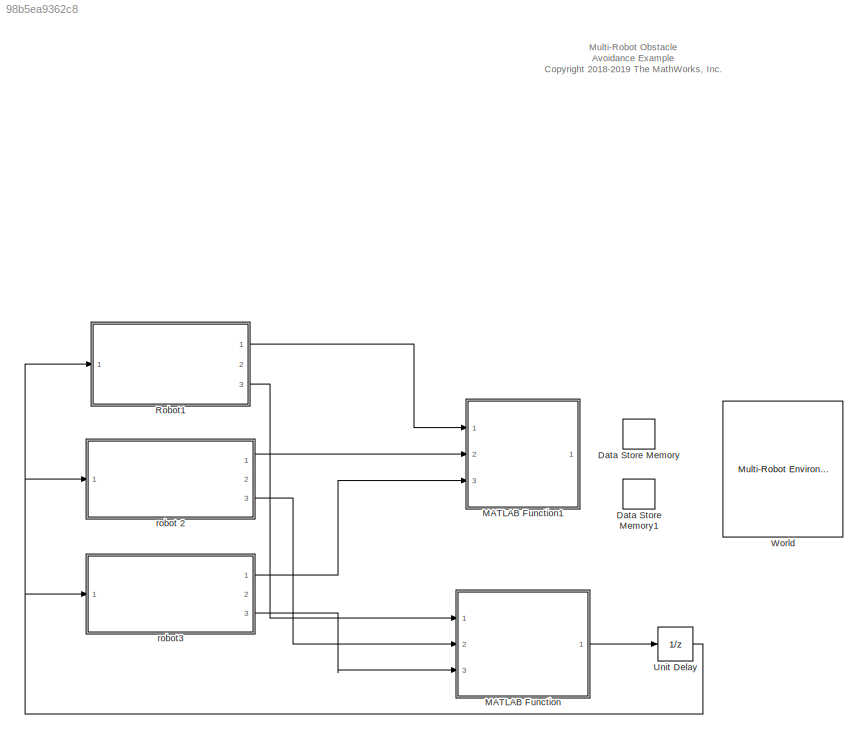
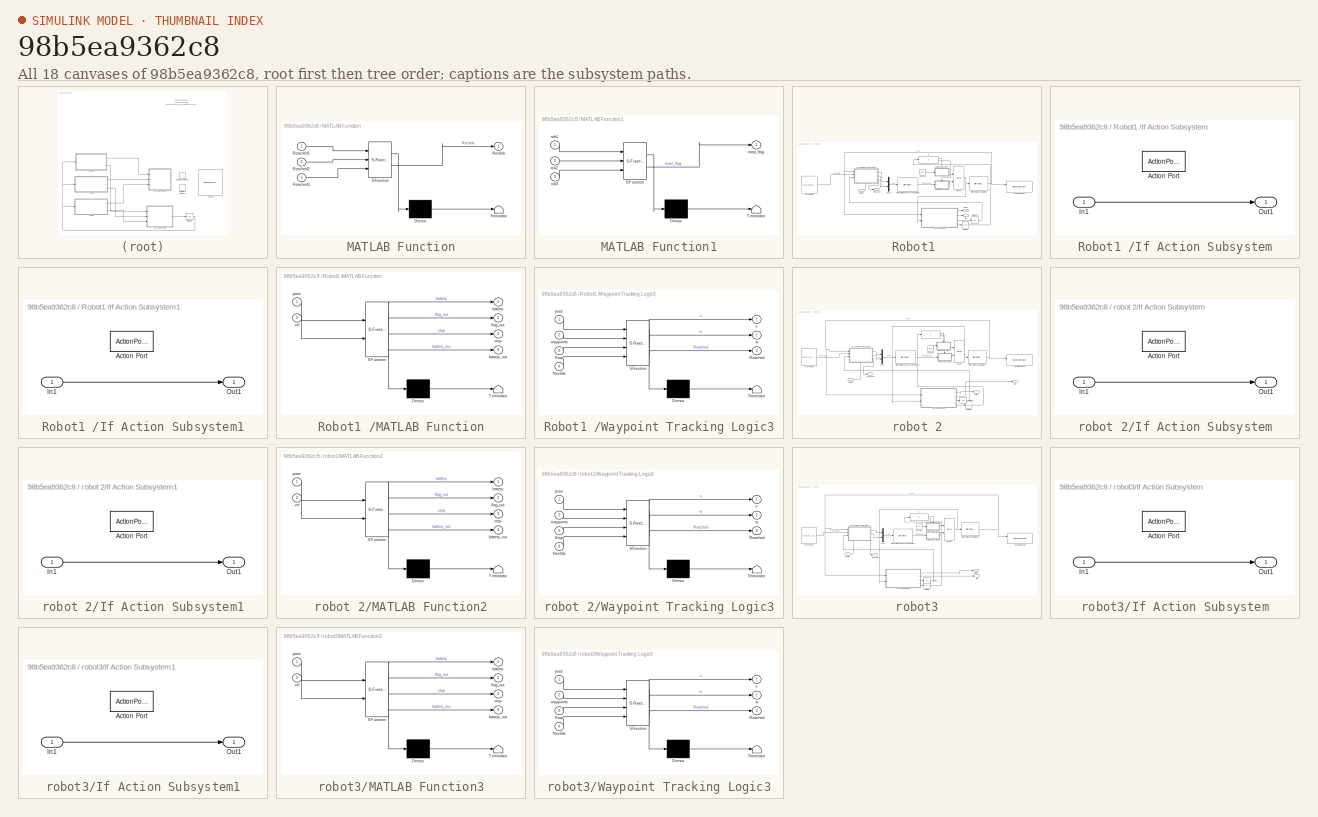
[diagram: thumbnail index - all 18 canvases of the model, root first then tree order]
MODEL slx_98b5ea9362c8
KIND model
CONFIG AbsTol = auto
CONFIG EnableMultiTasking = off
CONFIG FixedStep = sampleTime
CONFIG MaxStep = auto
CONFIG MinStep = auto
CONFIG PreLoadFcn = % Simulation parameters\nload exampleMap\nsampleTime = 0.05;\n\n% Robot parameters\nwheelRadius = 0.025;\nrobotRadius = 0.35;\n\n% Lidar parameters\nsensorOffset = [0,0];\nscanAngles = linspace(-pi/2,pi/2,9)';\nmaxRange = 5;
CONFIG RelTol = 1e-3
CONFIG SampleTimeConstraint = Unconstrained
CONFIG SolverName = FixedStepAuto
CONFIG StartTime = 0.0
CONFIG StopTime = inf
BLOCK [DataStoreMemory] Data Store Memory
  InitialValue = [1000 1000 1000]
  OutDataTypeStr = double
  ReadBeforeWriteMsg = warning
  ShowAdditionalParam = off
  SignalType = real
  WriteAfterReadMsg = warning
  WriteAfterWriteMsg = warning
BLOCK [DataStoreMemory] Data Store Memory1
  DataStoreName = master_flag
  OutDataTypeStr = double
  ReadBeforeWriteMsg = warning
  ShowAdditionalParam = off
  SignalType = real
  WriteAfterReadMsg = warning
  WriteAfterWriteMsg = warning
BLOCK [SubSystem] MATLAB Function
  ErrorFcn = Stateflow.Translate.translate
  PermitHierarchicalResolution = ExplicitOnly
  Ports = [3, 1]
  RequestExecContextInheritance = off
  SFBlockType = MATLAB Function
  TreatAsAtomicUnit = on
BLOCK [Demux] MATLAB Function/ Demux 
  Outputs = 1
  Ports = [1, 1]
BLOCK [S-Function] MATLAB Function/ SFunction 
  EnableBusSupport = on
  FunctionName = sf_sfun
  PortCounts = [3 2]
  Ports = [3, 2]
  SFcnIsStateOwnerBlock = off
  SFunctionDeploymentMode = off
  Tag = Stateflow S-Function 8
BLOCK [Terminator] MATLAB Function/ Terminator 
BLOCK [Outport] MATLAB Function/NextIdx
BLOCK [Inport] MATLAB Function/Reached1
BLOCK [Inport] MATLAB Function/Reached2
  Port = 2
BLOCK [Inport] MATLAB Function/Reached3
  Port = 3
BLOCK [SubSystem] MATLAB Function1
  ErrorFcn = Stateflow.Translate.translate
  PermitHierarchicalResolution = ExplicitOnly
  Ports = [3, 1]
  RequestExecContextInheritance = off
  SFBlockType = MATLAB Function
  TreatAsAtomicUnit = on
BLOCK [Demux] MATLAB Function1/ Demux 
  Outputs = 1
  Ports = [1, 1]
BLOCK [S-Function] MATLAB Function1/ SFunction 
  EnableBusSupport = on
  FunctionName = sf_sfun
  PortCounts = [3 2]
  Ports = [3, 2]
  SFcnIsStateOwnerBlock = off
  SFunctionDeploymentMode = off
  Tag = Stateflow S-Function 1
BLOCK [Terminator] MATLAB Function1/ Terminator 
BLOCK [Outport] MATLAB Function1/mast_flag
BLOCK [Inport] MATLAB Function1/rob1
BLOCK [Inport] MATLAB Function1/rob2
  Port = 2
BLOCK [Inport] MATLAB Function1/rob3
  Port = 3
BLOCK [SubSystem] Robot1 
  Ports = [1, 3]
  RequestExecContextInheritance = off
BLOCK [Constant] Robot1 /Constant
  Value = [0 0]
BLOCK [Reference] Robot1 /Differential Drive Inverse Kinematics  REF=mobileRoboticsLib/Kinematic Models/Differential Drive/Differential Drive
Inverse Kinematics
  Ports = [1, 1]
  SourceBlock = mobileRoboticsLib/Kinematic Models/Differential Drive/Differential Drive\nInverse Kinematics
  SourceProductName = Mobile Robotics Simulation Toolbox
  SourceType = Differential Drive Inverse Kinematics
BLOCK [Reference] Robot1 /Differential Drive Simulation  REF=mobileRoboticsLib/Kinematic Models/Differential Drive/Differential Drive Simulation
  Ports = [1, 1]
  SourceBlock = mobileRoboticsLib/Kinematic Models/Differential Drive/Differential Drive Simulation
  SourceProductName = Mobile Robotics Simulation Toolbox
  SourceType = Differential Drive Simulation
BLOCK [If] Robot1 /If
  IfExpression = u1 == 1
  Ports = [1, 2]
BLOCK [SubSystem] Robot1 /If Action Subsystem
  Ports = [1, 1, 0, 0, 0, 0, 0, 1]
  RequestExecContextInheritance = off
  TreatAsAtomicUnit = on
BLOCK [ActionPort] Robot1 /If Action Subsystem/Action Port
  ActionPortLabel = if(u1 == 1)
BLOCK [Inport] Robot1 /If Action Subsystem/In1
BLOCK [Outport] Robot1 /If Action Subsystem/Out1
BLOCK [SubSystem] Robot1 /If Action Subsystem1
  Ports = [1, 1, 0, 0, 0, 0, 0, 1]
  RequestExecContextInheritance = off
  TreatAsAtomicUnit = on
BLOCK [ActionPort] Robot1 /If Action Subsystem1/Action Port
  ActionPortLabel = else
BLOCK [Inport] Robot1 /If Action Subsystem1/In1
BLOCK [Outport] Robot1 /If Action Subsystem1/Out1
BLOCK [SubSystem] Robot1 /MATLAB Function
  ErrorFcn = Stateflow.Translate.translate
  PermitHierarchicalResolution = ExplicitOnly
  Ports = [2, 4]
  RequestExecContextInheritance = off
  SFBlockType = MATLAB Function
  TreatAsAtomicUnit = on
BLOCK [Demux] Robot1 /MATLAB Function/ Demux 
  Outputs = 1
  Ports = [1, 1]
BLOCK [S-Function] Robot1 /MATLAB Function/ SFunction 
  EnableBusSupport = on
  FunctionName = sf_sfun
  PortCounts = [2 5]
  Ports = [2, 5]
  SFcnIsStateOwnerBlock = off
  SFunctionDeploymentMode = off
  Tag = Stateflow S-Function 2
BLOCK [Terminator] Robot1 /MATLAB Function/ Terminator 
BLOCK [Outport] Robot1 /MATLAB Function/battery
BLOCK [Outport] Robot1 /MATLAB Function/battery_out
  Port = 4
BLOCK [Outport] Robot1 /MATLAB Function/flag_out
  Port = 2
BLOCK [Inport] Robot1 /MATLAB Function/pose
BLOCK [Outport] Robot1 /MATLAB Function/stop
  Port = 3
BLOCK [Inport] Robot1 /MATLAB Function/vel
  Port = 2
BLOCK [Merge] Robot1 /Merge
  Ports = [2, 1]
BLOCK [Mux] Robot1 /Mux3
  DisplayOption = bar
  Inputs = 2
  Ports = [2, 1]
BLOCK [Inport] Robot1 /NextIdx
BLOCK [Outport] Robot1 /Reached
  Port = 3
BLOCK [UnitDelay] Robot1 /Unit Delay
  HasFrameUpgradeWarning = on
  SampleTime = -1
BLOCK [UnitDelay] Robot1 /Unit Delay1
  HasFrameUpgradeWarning = on
  SampleTime = -1
BLOCK [Reference] Robot1 /Visualize Robot 1  REF=mobileRoboticsLib/Environments/Multi-Robot Visualizer
  Ports = [2]
  SourceBlock = mobileRoboticsLib/Environments/Multi-Robot Visualizer
  SourceProductName = Mobile Robotics Simulation Toolbox
  SourceType = Multi-Robot Visualizer
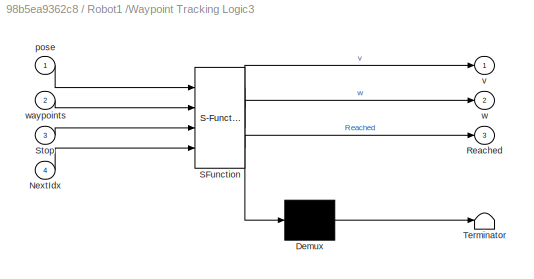
BLOCK [SubSystem] Robot1 /Waypoint Tracking Logic3
  ErrorFcn = Stateflow.Translate.translate
  PermitHierarchicalResolution = ExplicitOnly
  PortSchema = {"entries":[{"content":{"sides":[{"content":{"connectorIds":["In1","In2","In3"]},"type":"ConnectorPlacement.EquallySpacedRectSide","uuid":"0f37e2f5-7e3e-44b4-b5ad-f9c608efa7e9"},{"content":{"connectorIds":["Out1","Out2","Out3"],"side":"RIGHT"},"type":"ConnectorPlacement.EquallySpacedRectSide","uuid":"845bf79f-ea31-423e-b1b0-9ff668e9d8f6"},{"content":{"connectorIds":[],"side":"TOP"},"type":"Connect...<+559ch>
  Ports = [4, 3]
  RequestExecContextInheritance = off
  SFBlockType = Chart
  TreatAsAtomicUnit = on
BLOCK [Demux] Robot1 /Waypoint Tracking Logic3/ Demux 
  Outputs = 1
  Ports = [1, 1]
BLOCK [S-Function] Robot1 /Waypoint Tracking Logic3/ SFunction 
  EnableBusSupport = on
  FunctionName = sf_sfun
  PortCounts = [4 4]
  Ports = [4, 4]
  SFcnIsStateOwnerBlock = off
  SFunctionDeploymentMode = off
  Tag = Stateflow S-Function 7
BLOCK [Terminator] Robot1 /Waypoint Tracking Logic3/ Terminator 
BLOCK [Inport] Robot1 /Waypoint Tracking Logic3/NextIdx
  Port = 4
BLOCK [Outport] Robot1 /Waypoint Tracking Logic3/Reached
  Port = 3
BLOCK [Inport] Robot1 /Waypoint Tracking Logic3/Stop
  Port = 3
BLOCK [Inport] Robot1 /Waypoint Tracking Logic3/pose
BLOCK [Outport] Robot1 /Waypoint Tracking Logic3/v
  VectorParamsAs1DForOutWhenUnconnected = off
BLOCK [Outport] Robot1 /Waypoint Tracking Logic3/w
  Port = 2
  VectorParamsAs1DForOutWhenUnconnected = off
BLOCK [Inport] Robot1 /Waypoint Tracking Logic3/waypoints
  Port = 2
BLOCK [Constant] Robot1 /Waypoints
  Value = [0,2;0,0;0,2; 0,2; 0,0; 0,1;0,2;0,0;0,2; 0,2; 0,0; 0,1;0,2;0,0;0,2; 0,2; 0,0; 0,1]
BLOCK [Outport] Robot1 /battery
  Port = 2
BLOCK [Outport] Robot1 /flag
BLOCK [UnitDelay] Unit Delay
  HasFrameUpgradeWarning = on
  SampleTime = -1
BLOCK [Reference] World  REF=mobileRoboticsLib/Environments/Multi-Robot Environment
  Ports = []
  SourceBlock = mobileRoboticsLib/Environments/Multi-Robot Environment
  SourceProductName = Mobile Robotics Simulation Toolbox
  SourceType = Multi-Robot Environment
BLOCK [SubSystem] robot 2
  Ports = [1, 3]
  RequestExecContextInheritance = off
BLOCK [Constant] robot 2/Constant
  Value = [0 0]
BLOCK [Reference] robot 2/Differential Drive Inverse Kinematics1  REF=mobileRoboticsLib/Kinematic Models/Differential Drive/Differential Drive
Inverse Kinematics
  Ports = [1, 1]
  SourceBlock = mobileRoboticsLib/Kinematic Models/Differential Drive/Differential Drive\nInverse Kinematics
  SourceProductName = Mobile Robotics Simulation Toolbox
  SourceType = Differential Drive Inverse Kinematics
BLOCK [Reference] robot 2/Differential Drive Simulation1  REF=mobileRoboticsLib/Kinematic Models/Differential Drive/Differential Drive Simulation
  Ports = [1, 1]
  SourceBlock = mobileRoboticsLib/Kinematic Models/Differential Drive/Differential Drive Simulation
  SourceProductName = Mobile Robotics Simulation Toolbox
  SourceType = Differential Drive Simulation
BLOCK [If] robot 2/If
  IfExpression = u1 == 1
  Ports = [1, 2]
BLOCK [SubSystem] robot 2/If Action Subsystem
  Ports = [1, 1, 0, 0, 0, 0, 0, 1]
  RequestExecContextInheritance = off
  TreatAsAtomicUnit = on
BLOCK [ActionPort] robot 2/If Action Subsystem/Action Port
  ActionPortLabel = if(u1 == 1)
BLOCK [Inport] robot 2/If Action Subsystem/In1
BLOCK [Outport] robot 2/If Action Subsystem/Out1
BLOCK [SubSystem] robot 2/If Action Subsystem1
  Ports = [1, 1, 0, 0, 0, 0, 0, 1]
  RequestExecContextInheritance = off
  TreatAsAtomicUnit = on
BLOCK [ActionPort] robot 2/If Action Subsystem1/Action Port
  ActionPortLabel = else
BLOCK [Inport] robot 2/If Action Subsystem1/In1
BLOCK [Outport] robot 2/If Action Subsystem1/Out1
BLOCK [SubSystem] robot 2/MATLAB Function2
  ErrorFcn = Stateflow.Translate.translate
  PermitHierarchicalResolution = ExplicitOnly
  Ports = [2, 4]
  RequestExecContextInheritance = off
  SFBlockType = MATLAB Function
  TreatAsAtomicUnit = on
BLOCK [Demux] robot 2/MATLAB Function2/ Demux 
  Outputs = 1
  Ports = [1, 1]
BLOCK [S-Function] robot 2/MATLAB Function2/ SFunction 
  EnableBusSupport = on
  FunctionName = sf_sfun
  PortCounts = [2 5]
  Ports = [2, 5]
  SFcnIsStateOwnerBlock = off
  SFunctionDeploymentMode = off
  Tag = Stateflow S-Function 3
BLOCK [Terminator] robot 2/MATLAB Function2/ Terminator 
BLOCK [Outport] robot 2/MATLAB Function2/battery
BLOCK [Outport] robot 2/MATLAB Function2/battery_out
  Port = 4
BLOCK [Outport] robot 2/MATLAB Function2/flag_out
  Port = 2
BLOCK [Inport] robot 2/MATLAB Function2/pose
BLOCK [Outport] robot 2/MATLAB Function2/stop
  Port = 3
BLOCK [Inport] robot 2/MATLAB Function2/vel
  Port = 2
BLOCK [Merge] robot 2/Merge
  Ports = [2, 1]
BLOCK [Mux] robot 2/Mux3
  DisplayOption = bar
  Inputs = 2
  Ports = [2, 1]
BLOCK [Inport] robot 2/NextIdx
BLOCK [Outport] robot 2/Reached
  Port = 3
BLOCK [UnitDelay] robot 2/Unit Delay
  HasFrameUpgradeWarning = on
  SampleTime = -1
BLOCK [UnitDelay] robot 2/Unit Delay1
  HasFrameUpgradeWarning = on
  SampleTime = -1
BLOCK [Reference] robot 2/Visualize Robot 2  REF=mobileRoboticsLib/Environments/Multi-Robot Visualizer
  Ports = [2]
  SourceBlock = mobileRoboticsLib/Environments/Multi-Robot Visualizer
  SourceProductName = Mobile Robotics Simulation Toolbox
  SourceType = Multi-Robot Visualizer
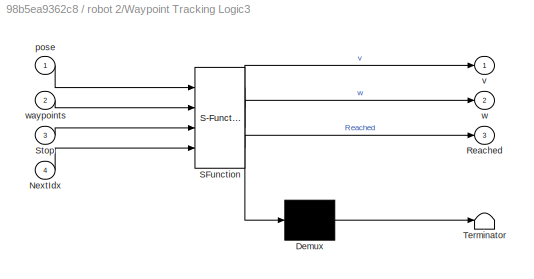
BLOCK [SubSystem] robot 2/Waypoint Tracking Logic3
  ErrorFcn = Stateflow.Translate.translate
  PermitHierarchicalResolution = ExplicitOnly
  PortSchema = {"entries":[{"content":{"sides":[{"content":{"connectorIds":["In1","In2","In3"]},"type":"ConnectorPlacement.EquallySpacedRectSide","uuid":"0f37e2f5-7e3e-44b4-b5ad-f9c608efa7e9"},{"content":{"connectorIds":["Out1","Out2","Out3"],"side":"RIGHT"},"type":"ConnectorPlacement.EquallySpacedRectSide","uuid":"845bf79f-ea31-423e-b1b0-9ff668e9d8f6"},{"content":{"connectorIds":[],"side":"TOP"},"type":"Connect...<+559ch>
  Ports = [4, 3]
  RequestExecContextInheritance = off
  SFBlockType = Chart
  TreatAsAtomicUnit = on
BLOCK [Demux] robot 2/Waypoint Tracking Logic3/ Demux 
  Outputs = 1
  Ports = [1, 1]
BLOCK [S-Function] robot 2/Waypoint Tracking Logic3/ SFunction 
  EnableBusSupport = on
  FunctionName = sf_sfun
  PortCounts = [4 4]
  Ports = [4, 4]
  SFcnIsStateOwnerBlock = off
  SFunctionDeploymentMode = off
  Tag = Stateflow S-Function 5
BLOCK [Terminator] robot 2/Waypoint Tracking Logic3/ Terminator 
BLOCK [Inport] robot 2/Waypoint Tracking Logic3/NextIdx
  Port = 4
BLOCK [Outport] robot 2/Waypoint Tracking Logic3/Reached
  Port = 3
BLOCK [Inport] robot 2/Waypoint Tracking Logic3/Stop
  Port = 3
BLOCK [Inport] robot 2/Waypoint Tracking Logic3/pose
BLOCK [Outport] robot 2/Waypoint Tracking Logic3/v
  VectorParamsAs1DForOutWhenUnconnected = off
BLOCK [Outport] robot 2/Waypoint Tracking Logic3/w
  Port = 2
  VectorParamsAs1DForOutWhenUnconnected = off
BLOCK [Inport] robot 2/Waypoint Tracking Logic3/waypoints
  Port = 2
BLOCK [Constant] robot 2/Waypoints1
  Value = [0,1; 0,2; 0,0; 0,1; 0,2;0,0;0,1; 0,2; 0,0; 0,1; 0,2;0,0;0,1; 0,2; 0,0; 0,1; 0,2;0,0]
BLOCK [Outport] robot 2/battery
  Port = 2
BLOCK [Outport] robot 2/flag
BLOCK [SubSystem] robot3
  Ports = [1, 3]
  RequestExecContextInheritance = off
BLOCK [Constant] robot3/Constant
  Value = [0 0]
BLOCK [Reference] robot3/Differential Drive Inverse Kinematics2  REF=mobileRoboticsLib/Kinematic Models/Differential Drive/Differential Drive
Inverse Kinematics
  Ports = [1, 1]
  SourceBlock = mobileRoboticsLib/Kinematic Models/Differential Drive/Differential Drive\nInverse Kinematics
  SourceProductName = Mobile Robotics Simulation Toolbox
  SourceType = Differential Drive Inverse Kinematics
BLOCK [Reference] robot3/Differential Drive Simulation2  REF=mobileRoboticsLib/Kinematic Models/Differential Drive/Differential Drive Simulation
  Ports = [1, 1]
  SourceBlock = mobileRoboticsLib/Kinematic Models/Differential Drive/Differential Drive Simulation
  SourceProductName = Mobile Robotics Simulation Toolbox
  SourceType = Differential Drive Simulation
BLOCK [If] robot3/If
  IfExpression = u1 == 1
  Ports = [1, 2]
BLOCK [SubSystem] robot3/If Action Subsystem
  Ports = [1, 1, 0, 0, 0, 0, 0, 1]
  RequestExecContextInheritance = off
  TreatAsAtomicUnit = on
BLOCK [ActionPort] robot3/If Action Subsystem/Action Port
  ActionPortLabel = if(u1 == 1)
BLOCK [Inport] robot3/If Action Subsystem/In1
BLOCK [Outport] robot3/If Action Subsystem/Out1
BLOCK [SubSystem] robot3/If Action Subsystem1
  Ports = [1, 1, 0, 0, 0, 0, 0, 1]
  RequestExecContextInheritance = off
  TreatAsAtomicUnit = on
BLOCK [ActionPort] robot3/If Action Subsystem1/Action Port
  ActionPortLabel = else
BLOCK [Inport] robot3/If Action Subsystem1/In1
BLOCK [Outport] robot3/If Action Subsystem1/Out1
BLOCK [SubSystem] robot3/MATLAB Function3
  ErrorFcn = Stateflow.Translate.translate
  PermitHierarchicalResolution = ExplicitOnly
  Ports = [2, 4]
  RequestExecContextInheritance = off
  SFBlockType = MATLAB Function
  TreatAsAtomicUnit = on
BLOCK [Demux] robot3/MATLAB Function3/ Demux 
  Outputs = 1
  Ports = [1, 1]
BLOCK [S-Function] robot3/MATLAB Function3/ SFunction 
  EnableBusSupport = on
  FunctionName = sf_sfun
  PortCounts = [2 5]
  Ports = [2, 5]
  SFcnIsStateOwnerBlock = off
  SFunctionDeploymentMode = off
  Tag = Stateflow S-Function 4
BLOCK [Terminator] robot3/MATLAB Function3/ Terminator 
BLOCK [Outport] robot3/MATLAB Function3/battery
BLOCK [Outport] robot3/MATLAB Function3/battery_out
  Port = 4
BLOCK [Outport] robot3/MATLAB Function3/flag_out
  Port = 2
BLOCK [Inport] robot3/MATLAB Function3/pose
BLOCK [Outport] robot3/MATLAB Function3/stop
  Port = 3
BLOCK [Inport] robot3/MATLAB Function3/vel
  Port = 2
BLOCK [Merge] robot3/Merge
  Ports = [2, 1]
BLOCK [Mux] robot3/Mux3
  DisplayOption = bar
  Inputs = 2
  Ports = [2, 1]
BLOCK [Inport] robot3/NextIdx
BLOCK [Outport] robot3/Reached
  Port = 3
BLOCK [UnitDelay] robot3/Unit Delay
  HasFrameUpgradeWarning = on
  SampleTime = -1
BLOCK [UnitDelay] robot3/Unit Delay1
  HasFrameUpgradeWarning = on
  SampleTime = -1
BLOCK [Reference] robot3/Visualize Robot 3  REF=mobileRoboticsLib/Environments/Multi-Robot Visualizer
  Ports = [2]
  SourceBlock = mobileRoboticsLib/Environments/Multi-Robot Visualizer
  SourceProductName = Mobile Robotics Simulation Toolbox
  SourceType = Multi-Robot Visualizer
BLOCK [SubSystem] robot3/Waypoint Tracking Logic3
  ErrorFcn = Stateflow.Translate.translate
  PermitHierarchicalResolution = ExplicitOnly
  PortSchema = {"entries":[{"content":{"sides":[{"content":{"connectorIds":["In1","In2","In3"]},"type":"ConnectorPlacement.EquallySpacedRectSide","uuid":"0f37e2f5-7e3e-44b4-b5ad-f9c608efa7e9"},{"content":{"connectorIds":["Out1","Out2"],"side":"RIGHT"},"type":"ConnectorPlacement.EquallySpacedRectSide","uuid":"845bf79f-ea31-423e-b1b0-9ff668e9d8f6"},{"content":{"connectorIds":[],"side":"TOP"},"type":"ConnectorPlace...<+559ch>
  Ports = [4, 3]
  RequestExecContextInheritance = off
  SFBlockType = Chart
  TreatAsAtomicUnit = on
BLOCK [Demux] robot3/Waypoint Tracking Logic3/ Demux 
  Outputs = 1
  Ports = [1, 1]
BLOCK [S-Function] robot3/Waypoint Tracking Logic3/ SFunction 
  EnableBusSupport = on
  FunctionName = sf_sfun
  PortCounts = [4 4]
  Ports = [4, 4]
  SFcnIsStateOwnerBlock = off
  SFunctionDeploymentMode = off
  Tag = Stateflow S-Function 6
BLOCK [Terminator] robot3/Waypoint Tracking Logic3/ Terminator 
BLOCK [Inport] robot3/Waypoint Tracking Logic3/NextIdx
  Port = 4
BLOCK [Outport] robot3/Waypoint Tracking Logic3/Reached
  Port = 3
BLOCK [Inport] robot3/Waypoint Tracking Logic3/Stop
  Port = 3
BLOCK [Inport] robot3/Waypoint Tracking Logic3/pose
BLOCK [Outport] robot3/Waypoint Tracking Logic3/v
  VectorParamsAs1DForOutWhenUnconnected = off
BLOCK [Outport] robot3/Waypoint Tracking Logic3/w
  Port = 2
  VectorParamsAs1DForOutWhenUnconnected = off
BLOCK [Inport] robot3/Waypoint Tracking Logic3/waypoints
  Port = 2
BLOCK [Constant] robot3/Waypoints2
  Value = [0,0;0,1; 0,2; 0,0; 0,1; 0,2;0,0;0,1; 0,2; 0,0; 0,1; 0,2;0,0;0,1; 0,2; 0,0; 0,1; 0,2]
BLOCK [Outport] robot3/battery
  Port = 2
BLOCK [Outport] robot3/flag
ANNOTATION (root): Multi-Robot Obstacle Avoidance Example <copyright redacted>
LINE MATLAB Function:1 -> Unit Delay:1
LINE Robot1 /Constant:1 -> Robot1 /If Action Subsystem:1
LINE Robot1 /Differential Drive Inverse Kinematics:1 -> Robot1 /If Action Subsystem1:1
NET Robot1 /Differential Drive Simulation:1 -> Robot1 /MATLAB Function:1, Robot1 /Visualize Robot 1:1, Robot1 /Waypoint Tracking Logic3:1
LINE Robot1 /If Action Subsystem/In1:1 -> Robot1 /If Action Subsystem/Out1:1
LINE Robot1 /If Action Subsystem1/In1:1 -> Robot1 /If Action Subsystem1/Out1:1
LINE Robot1 /If Action Subsystem1:1 -> Robot1 /Merge:2
LINE Robot1 /If Action Subsystem:1 -> Robot1 /Merge:1
LINE Robot1 /If:1 -> Robot1 /If Action Subsystem:ifaction
LINE Robot1 /If:2 -> Robot1 /If Action Subsystem1:ifaction
LINE Robot1 /MATLAB Function:1 -> Robot1 /battery:1
LINE Robot1 /MATLAB Function:2 -> Robot1 /flag:1
LINE Robot1 /MATLAB Function:3 -> Robot1 /Unit Delay1:1
LINE Robot1 /MATLAB Function:4 -> Robot1 /Unit Delay:1
NET Robot1 /Merge:1 -> Robot1 /Differential Drive Simulation:1, Robot1 /MATLAB Function:2
LINE Robot1 /Mux3:1 -> Robot1 /Differential Drive Inverse Kinematics:1
LINE Robot1 /NextIdx:1 -> Robot1 /Waypoint Tracking Logic3:4
LINE Robot1 /Unit Delay1:1 -> Robot1 /Waypoint Tracking Logic3:3
LINE Robot1 /Unit Delay:1 -> Robot1 /If:1
LINE Robot1 /Waypoint Tracking Logic3:1 -> Robot1 /Mux3:1
LINE Robot1 /Waypoint Tracking Logic3:2 -> Robot1 /Mux3:2
LINE Robot1 /Waypoint Tracking Logic3:3 -> Robot1 /Reached:1
LINE Robot1 /Waypoints:1 -> Robot1 /Waypoint Tracking Logic3:2
LINE Robot1 :1 -> MATLAB Function1:1
LINE Robot1 :3 -> MATLAB Function:1
NET Unit Delay:1 -> Robot1 :1, robot 2:1, robot3:1
LINE robot 2/Constant:1 -> robot 2/If Action Subsystem:1
LINE robot 2/Differential Drive Inverse Kinematics1:1 -> robot 2/If Action Subsystem1:1
NET robot 2/Differential Drive Simulation1:1 -> robot 2/MATLAB Function2:1, robot 2/Visualize Robot 2:1, robot 2/Waypoint Tracking Logic3:1
LINE robot 2/If Action Subsystem/In1:1 -> robot 2/If Action Subsystem/Out1:1
LINE robot 2/If Action Subsystem1/In1:1 -> robot 2/If Action Subsystem1/Out1:1
LINE robot 2/If Action Subsystem1:1 -> robot 2/Merge:2
LINE robot 2/If Action Subsystem:1 -> robot 2/Merge:1
LINE robot 2/If:1 -> robot 2/If Action Subsystem:ifaction
LINE robot 2/If:2 -> robot 2/If Action Subsystem1:ifaction
LINE robot 2/MATLAB Function2:1 -> robot 2/battery:1
LINE robot 2/MATLAB Function2:2 -> robot 2/flag:1
LINE robot 2/MATLAB Function2:3 -> robot 2/Unit Delay1:1
LINE robot 2/MATLAB Function2:4 -> robot 2/Unit Delay:1
NET robot 2/Merge:1 -> robot 2/Differential Drive Simulation1:1, robot 2/MATLAB Function2:2
LINE robot 2/Mux3:1 -> robot 2/Differential Drive Inverse Kinematics1:1
LINE robot 2/NextIdx:1 -> robot 2/Waypoint Tracking Logic3:4
LINE robot 2/Unit Delay1:1 -> robot 2/Waypoint Tracking Logic3:3
LINE robot 2/Unit Delay:1 -> robot 2/If:1
LINE robot 2/Waypoint Tracking Logic3:1 -> robot 2/Mux3:1
LINE robot 2/Waypoint Tracking Logic3:2 -> robot 2/Mux3:2
LINE robot 2/Waypoint Tracking Logic3:3 -> robot 2/Reached:1
LINE robot 2/Waypoints1:1 -> robot 2/Waypoint Tracking Logic3:2
LINE robot 2:1 -> MATLAB Function1:2
LINE robot 2:3 -> MATLAB Function:2
LINE robot3/Constant:1 -> robot3/If Action Subsystem:1
LINE robot3/Differential Drive Inverse Kinematics2:1 -> robot3/If Action Subsystem1:1
NET robot3/Differential Drive Simulation2:1 -> robot3/MATLAB Function3:1, robot3/Visualize Robot 3:1, robot3/Waypoint Tracking Logic3:1
LINE robot3/If Action Subsystem/In1:1 -> robot3/If Action Subsystem/Out1:1
LINE robot3/If Action Subsystem1/In1:1 -> robot3/If Action Subsystem1/Out1:1
LINE robot3/If Action Subsystem1:1 -> robot3/Merge:2
LINE robot3/If Action Subsystem:1 -> robot3/Merge:1
LINE robot3/If:1 -> robot3/If Action Subsystem:ifaction
LINE robot3/If:2 -> robot3/If Action Subsystem1:ifaction
LINE robot3/MATLAB Function3:1 -> robot3/battery:1
LINE robot3/MATLAB Function3:2 -> robot3/flag:1
LINE robot3/MATLAB Function3:3 -> robot3/Unit Delay1:1
LINE robot3/MATLAB Function3:4 -> robot3/Unit Delay:1
NET robot3/Merge:1 -> robot3/Differential Drive Simulation2:1, robot3/MATLAB Function3:2
LINE robot3/Mux3:1 -> robot3/Differential Drive Inverse Kinematics2:1
LINE robot3/NextIdx:1 -> robot3/Waypoint Tracking Logic3:4
LINE robot3/Unit Delay1:1 -> robot3/Waypoint Tracking Logic3:3
LINE robot3/Unit Delay:1 -> robot3/If:1
LINE robot3/Waypoint Tracking Logic3:1 -> robot3/Mux3:1
LINE robot3/Waypoint Tracking Logic3:2 -> robot3/Mux3:2
LINE robot3/Waypoint Tracking Logic3:3 -> robot3/Reached:1
LINE robot3/Waypoints2:1 -> robot3/Waypoint Tracking Logic3:2
LINE robot3:1 -> MATLAB Function1:3
LINE robot3:3 -> MATLAB Function:3
note: NET lines group one-source signal fan-out (src -> all destinations, sorted); 1:1 wires keep LINE
CHART robot 2/MATLAB Function2 states=1 transitions=1
  STATE_LABEL 'eML_blk_kernel()'
  STATE_LABEL "SCRIPT:\nfunction [battery, flag_out,stop, battery_out]  = battery( pose,vel) \nhome = [0.1,0.1,0]';\nglobal A;\nglobal master_flag;\ncharge = 4;\ndischarge =2;\nbattery = A(2);\nstop=0;\nbattery_out=0;\nif(abs(pose(2)))<home(2) \n    flag_out = 1;\n    battery = battery +charge;\n    if battery>500\n        flag_out=0;\n    end\nelse\n    flag_out =0;\nend\n\nif vel(1)>0 || vel(2)>0\n    battery= battery-discharge;\ne...<+93ch>"
CHART robot3/MATLAB Function3 states=1 transitions=1
  STATE_LABEL 'eML_blk_kernel()'
  STATE_LABEL "SCRIPT:\nfunction [battery, flag_out,stop, battery_out]  = battery( pose, vel) \nhome = [0.1,0.1,0]';\nglobal A;\nglobal master_flag;\ncharge = 4;\ndischarge =2;\nbattery = A(3);\nstop=0;\nbattery_out=0;\n\n\nif(abs(pose(2)))<home(2)  \n    flag_out = 1;\n    battery = battery +charge;\n    if battery>500\n        flag_out=0;\n    end\nelse\n    flag_out =0;\nend\n\nif vel(1)>0 || vel(2)>0\n    battery= battery-discharg...<+97ch>"
CHART robot 2/Waypoint Tracking Logic3 states=5 transitions=16
  STATE_LABEL 'StopEntry\nentry:\nv =0;\nw=0;'
  STATE_LABEL 'FollowWaypoints\nentry:\ngoalPoint = waypoints(idx,:);\nentry, during:\n[angle,range] = trackGoal(goalPoint);\nReached=false;\n'
  STATE_LABEL '% Set angular speed if\n% angle outside deadband\n[abs(angle) > pi/24]'
  STATE_LABEL '{w = 0;}'
  STATE_LABEL '% Proportional \n% control \n{w = 1.5*angle;}'
  STATE_LABEL 'ReachedGoal\nentry:\nv = 0;\nw = 0.5;'
  STATE_LABEL 'NextIdxEntry\nentry:\nv=0;\nw=0;'
  STATE_LABEL '[ang,dist] = trackGoal(goal)'
  STATE_LABEL 'SCRIPT:\nfunction [ang,dist] = trackGoal(goal)\n% Finds the angle (theta) and distance (dist) between the \n% vehicle and a goal point\n    \nposDiff = [goal(1)-pose(1);goal(2)-pose(2)];\n\nang = angdiff(pose(3),atan2(posDiff(2),posDiff(1)));\ndist = sqrt(posDiff(1)^2 + posDiff(2)^2);\n'  <repeated x3 — deduplicated; at blocks: Waypoint Tracking Logic3>
CHART robot3/Waypoint Tracking Logic3 states=5 transitions=16
  STATE_LABEL 'StopEntry\nentry:\nv =0;\nw=0;'
  STATE_LABEL 'FollowWaypoints\nentry:\ngoalPoint = waypoints(idx,:);\nentry, during:\n[angle,range] = trackGoal(goalPoint);\nReached=false;\n'
  STATE_LABEL '% Set angular speed if\n% angle outside deadband\n[abs(angle) > pi/24]'
  STATE_LABEL '{w = 0;}'
  STATE_LABEL '% Proportional \n% control \n{w = 1.5*angle;}'
  STATE_LABEL 'ReachedGoal\nentry:\nv = 0;\nw = 0.5;'
  STATE_LABEL 'NextIdxEntry\nentry:\nv=0;\nw=0;'
  STATE_LABEL '[ang,dist] = trackGoal(goal)'
CHART Robot1 /Waypoint Tracking Logic3 states=5 transitions=16
  STATE_LABEL 'StopEntry\nentry:\nv =0;\nw=0;'
  STATE_LABEL 'FollowWaypoints\nentry:\ngoalPoint = waypoints(idx,:);\nentry, during:\n[angle,range] = trackGoal(goalPoint);\nReached=false;\n'
  STATE_LABEL '% Set angular speed if\n% angle outside deadband\n[abs(angle) > pi/24]'
  STATE_LABEL '{w = 0;}'
  STATE_LABEL '% Proportional \n% control \n{w = 1.5*angle;}'
  STATE_LABEL 'ReachedGoal\nentry:\nv = 0;\nw = 0.5;'
  STATE_LABEL 'NextIdxEntry\nentry:\nv=0;\nw=0;'
  STATE_LABEL '[ang,dist] = trackGoal(goal)'
CHART MATLAB Function states=1 transitions=1
  STATE_LABEL 'eML_blk_kernel()'
  STATE_LABEL 'SCRIPT:\nfunction NextIdx= NextIdx_fcn(Reached1, Reached2, Reached3)\nif Reached1==true && Reached2==true && Reached3==true\n    NextIdx=true;\nelse\n    NextIdx=false;\nend\n\n'
CHART MATLAB Function1 states=1 transitions=1
  STATE_LABEL 'eML_blk_kernel()'
  STATE_LABEL 'SCRIPT:\nfunction mast_flag = branch_manager(rob1,rob2,rob3)\nflags=[rob1,rob2,rob3];\nglobal master_flag;\nif rob1==1 || rob2==1 || rob3==1\n    master_flag=1;\nelse\n    master_flag=0;\nend\nmast_flag=master_flag;'
CHART Robot1 /MATLAB Function states=1 transitions=1
  STATE_LABEL 'eML_blk_kernel()'
  STATE_LABEL "SCRIPT:\nfunction [battery, flag_out,stop, battery_out]  = battery( pose,vel) \nhome = [0.1,0.2,0]';\nglobal A;\nglobal master_flag;\ncharge = 4;\ndischarge =2;\nbattery = A(1);\nstop=0;\nbattery_out=0;\n\nif(abs(pose(2)))<home(2)\n    flag_out = 1;\n    battery = battery +charge;\n    if battery>500\n        flag_out=0;\n    end\nelse\n    flag_out =0;\nend\n\nif vel(1)>0 || vel(2)>0\n    battery= battery-discharge;\ne...<+94ch>"
CHART  states=0 transitions=0
CHART  states=0 transitions=0
CHART  states=0 transitions=0
CHART  states=0 transitions=0
CHART  states=0 transitions=0
CHART  states=0 transitions=0
CHART  states=0 transitions=0
CHART  states=0 transitions=0
